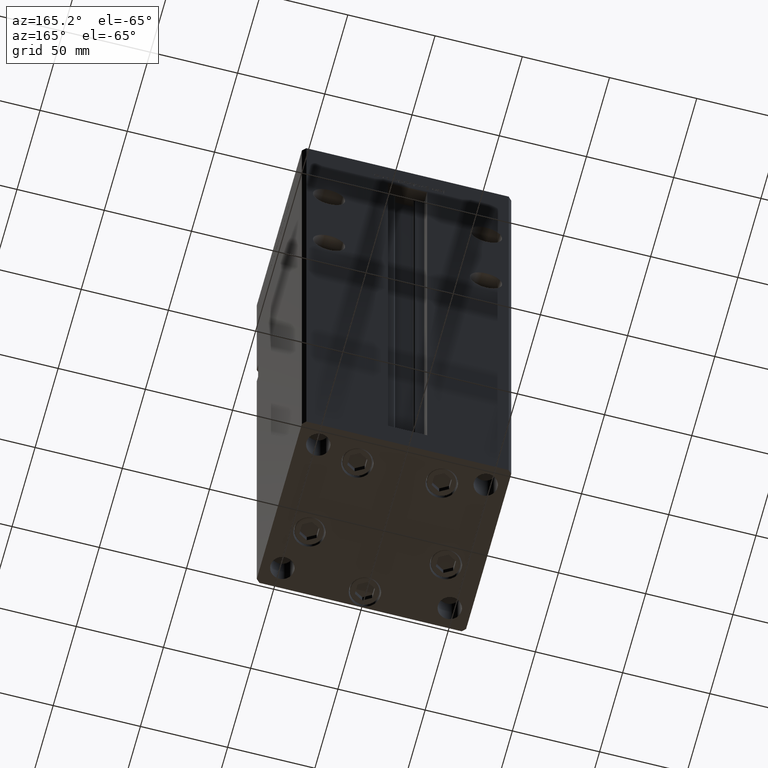
[diagram: clean part render]
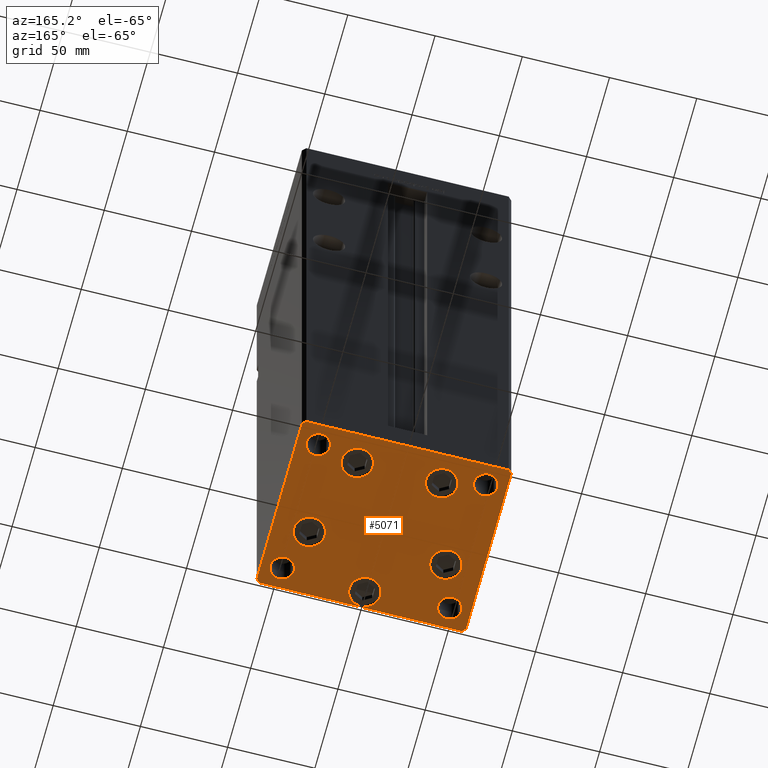
[diagram: same view with one face highlighted and labeled with its STEP entity id]
A machine part, auxiliary view. The second image highlights one B-rep face of the part: STEP entity #5071.
In plain terms, the highlighted planar face has unit normal (0, 0, -1).
Its self-contained STEP definition (entity closure, byte-faithful):
#227 = EDGE_CURVE ( 'NONE', #23688, #44124, #26103, .T. ) ;
#434 = VECTOR ( 'NONE', #35728, 1000.000000000000000 ) ;
#574 = VERTEX_POINT ( 'NONE', #50448 ) ;
#1425 = ORIENTED_EDGE ( 'NONE', *, *, #42362, .T. ) ;
#1432 = VERTEX_POINT ( 'NONE', #7036 ) ;
#1443 = EDGE_CURVE ( 'NONE', #43999, #1432, #26890, .T. ) ;
#1578 = AXIS2_PLACEMENT_3D ( 'NONE', #29244, #29500, #41588 ) ;
#1609 = DIRECTION ( 'NONE',  ( -0.000000000000000000, 0.000000000000000000, 1.000000000000000000 ) ) ;
#1767 = VERTEX_POINT ( 'NONE', #31162 ) ;
#2733 = DIRECTION ( 'NONE',  ( 1.000000000000000000, 0.000000000000000000, 0.000000000000000000 ) ) ;
#2850 = CARTESIAN_POINT ( 'NONE',  ( 60.00000000000001421, -48.99999999999999289, 0.000000000000000000 ) ) ;
#3507 = CARTESIAN_POINT ( 'NONE',  ( 57.99999999999993605, 51.00000000000000711, 0.000000000000000000 ) ) ;
#3524 = CIRCLE ( 'NONE', #19802, 6.749999999999999112 ) ;
#3670 = ORIENTED_EDGE ( 'NONE', *, *, #10462, .T. ) ;
#3736 = CARTESIAN_POINT ( 'NONE',  ( 48.00000000000000000, -38.99999999999999289, 0.000000000000000000 ) ) ;
#3819 = EDGE_LOOP ( 'NONE', ( #28936, #27051 ) ) ;
#3830 = ORIENTED_EDGE ( 'NONE', *, *, #23239, .T. ) ;
#4729 = DIRECTION ( 'NONE',  ( 1.000000000000000000, 1.196361017915039486E-16, 0.000000000000000000 ) ) ;
#4796 = VERTEX_POINT ( 'NONE', #33762 ) ;
#5071 = ADVANCED_FACE ( 'NONE', ( #38982, #30671, #26123, #26658, #42486, #26391, #45999, #30400, #22384, #17544 ), #50024, .T. ) ;
#5248 = CIRCLE ( 'NONE', #30094, 6.749999999999999112 ) ;
#5361 = CIRCLE ( 'NONE', #35337, 9.000000000000001776 ) ;
#5596 = ORIENTED_EDGE ( 'NONE', *, *, #10224, .T. ) ;
#6252 = DIRECTION ( 'NONE',  ( 1.000000000000000000, 0.000000000000000000, 0.000000000000000000 ) ) ;
#6625 = CARTESIAN_POINT ( 'NONE',  ( 39.12657522565562829, -13.83333333333332860, 0.000000000000000000 ) ) ;
#6651 = VERTEX_POINT ( 'NONE', #40194 ) ;
#6683 = AXIS2_PLACEMENT_3D ( 'NONE', #48412, #43857, #48680 ) ;
#6884 = DIRECTION ( 'NONE',  ( 1.000000000000000000, 0.000000000000000000, 0.000000000000000000 ) ) ;
#7036 = CARTESIAN_POINT ( 'NONE',  ( -57.99999999999999289, 50.99999999999997868, 0.000000000000000000 ) ) ;
#7197 = VERTEX_POINT ( 'NONE', #50492 ) ;
#7375 = ORIENTED_EDGE ( 'NONE', *, *, #26660, .T. ) ;
#7413 = DIRECTION ( 'NONE',  ( 0.000000000000000000, -0.000000000000000000, -1.000000000000000000 ) ) ;
#7436 = ORIENTED_EDGE ( 'NONE', *, *, #50884, .T. ) ;
#7828 = CARTESIAN_POINT ( 'NONE',  ( -54.75000000000000000, -39.00000000000000000, 0.000000000000000000 ) ) ;
#8031 = EDGE_CURVE ( 'NONE', #1432, #15408, #48982, .T. ) ;
#8234 = CARTESIAN_POINT ( 'NONE',  ( -39.12657522565562829, -13.83333333333333925, 0.000000000000000000 ) ) ;
#8241 = AXIS2_PLACEMENT_3D ( 'NONE', #9218, #50814, #38724 ) ;
#8758 = ORIENTED_EDGE ( 'NONE', *, *, #20417, .F. ) ;
#9142 = CARTESIAN_POINT ( 'NONE',  ( -24.19288941894912170, 33.71875000000000000, 0.000000000000000000 ) ) ;
#9218 = CARTESIAN_POINT ( 'NONE',  ( 0.000000000000000000, 0.000000000000000000, 0.000000000000000000 ) ) ;
#9290 = CARTESIAN_POINT ( 'NONE',  ( 59.99999999999994316, 49.00000000000000000, 0.000000000000000000 ) ) ;
#9383 = VECTOR ( 'NONE', #4729, 1000.000000000000000 ) ;
#9524 = EDGE_LOOP ( 'NONE', ( #34219, #34016 ) ) ;
#9579 = EDGE_CURVE ( 'NONE', #15054, #7197, #44361, .T. ) ;
#9876 = VECTOR ( 'NONE', #45505, 1000.000000000000114 ) ;
#9908 = ORIENTED_EDGE ( 'NONE', *, *, #13070, .T. ) ;
#10224 = EDGE_CURVE ( 'NONE', #6651, #4796, #52958, .T. ) ;
#10223 = AXIS2_PLACEMENT_3D ( 'NONE', #3736, #37247, #53118 ) ;
#10462 = EDGE_CURVE ( 'NONE', #48287, #37679, #32405, .T. ) ;
#12011 = DIRECTION ( 'NONE',  ( 1.000000000000000000, 0.000000000000000000, 0.000000000000000000 ) ) ;
#12204 = CARTESIAN_POINT ( 'NONE',  ( -57.99999999999999289, 50.99999999999997868, 0.000000000000000000 ) ) ;
#12214 = CARTESIAN_POINT ( 'NONE',  ( -48.00000000000000000, -39.00000000000000000, 0.000000000000000000 ) ) ;
#12481 = CARTESIAN_POINT ( 'NONE',  ( 58.00000000000000000, -51.00000000000000711, 0.000000000000000000 ) ) ;
#12526 = DIRECTION ( 'NONE',  ( 1.000000000000000000, 0.000000000000000000, 0.000000000000000000 ) ) ;
#12590 = CARTESIAN_POINT ( 'NONE',  ( 60.00000000000001421, -48.99999999999999289, 0.000000000000000000 ) ) ;
#12679 = AXIS2_PLACEMENT_3D ( 'NONE', #26786, #26257, #43688 ) ;
#12841 = VERTEX_POINT ( 'NONE', #21131 ) ;
#13070 = EDGE_CURVE ( 'NONE', #31435, #52591, #27263, .T. ) ;
#13367 = ORIENTED_EDGE ( 'NONE', *, *, #37819, .T. ) ;
#14818 = DIRECTION ( 'NONE',  ( 0.000000000000000000, -1.000000000000000000, 0.000000000000000000 ) ) ;
#14964 = VECTOR ( 'NONE', #51719, 1000.000000000000114 ) ;
#15054 = VERTEX_POINT ( 'NONE', #35616 ) ;
#15155 = EDGE_CURVE ( 'NONE', #50538, #25586, #23846, .T. ) ;
#15408 = VERTEX_POINT ( 'NONE', #35022 ) ;
#16948 = DIRECTION ( 'NONE',  ( 1.000000000000000000, 0.000000000000000000, 0.000000000000000000 ) ) ;
#16976 = AXIS2_PLACEMENT_3D ( 'NONE', #38552, #43643, #6884 ) ;
#17172 = CIRCLE ( 'NONE', #35996, 9.000000000000000000 ) ;
#17424 = CARTESIAN_POINT ( 'NONE',  ( -30.12657522565562829, -13.83333333333333748, 0.000000000000000000 ) ) ;
#17544 = FACE_BOUND ( 'NONE', #9524, .T. ) ;
#17641 = CARTESIAN_POINT ( 'NONE',  ( 59.99999999999994316, 49.00000000000000000, 0.000000000000000000 ) ) ;
#17900 = AXIS2_PLACEMENT_3D ( 'NONE', #6625, #7413, #23792 ) ;
#18593 = EDGE_LOOP ( 'NONE', ( #40769, #31527 ) ) ;
#19802 = AXIS2_PLACEMENT_3D ( 'NONE', #48216, #44436, #31301 ) ;
#20417 = EDGE_CURVE ( 'NONE', #44124, #23688, #3524, .T. ) ;
#20465 = CIRCLE ( 'NONE', #1578, 9.000000000000000000 ) ;
#20581 = CARTESIAN_POINT ( 'NONE',  ( -57.99999999999997868, -51.00000000000001421, 0.000000000000000000 ) ) ;
#20831 = EDGE_LOOP ( 'NONE', ( #21445, #3670 ) ) ;
#21131 = CARTESIAN_POINT ( 'NONE',  ( -8.999999999999994671, -41.50000000000000000, 0.000000000000000000 ) ) ;
#21445 = ORIENTED_EDGE ( 'NONE', *, *, #36437, .T. ) ;
#22384 = FACE_OUTER_BOUND ( 'NONE', #45068, .T. ) ;
#22632 = EDGE_LOOP ( 'NONE', ( #42536, #3830 ) ) ;
#23239 = EDGE_CURVE ( 'NONE', #31891, #44759, #43213, .T. ) ;
#23394 = DIRECTION ( 'NONE',  ( 0.000000000000000000, -0.000000000000000000, -1.000000000000000000 ) ) ;
#23441 = DIRECTION ( 'NONE',  ( 0.000000000000000000, -0.000000000000000000, -1.000000000000000000 ) ) ;
#23688 = VERTEX_POINT ( 'NONE', #50256 ) ;
#23792 = DIRECTION ( 'NONE',  ( 1.000000000000000000, 0.000000000000000000, 0.000000000000000000 ) ) ;
#23812 = VECTOR ( 'NONE', #36346, 1000.000000000000000 ) ;
#23846 = CIRCLE ( 'NONE', #12679, 9.000000000000001776 ) ;
#23870 = CARTESIAN_POINT ( 'NONE',  ( 39.12657522565562829, -13.83333333333332860, 0.000000000000000000 ) ) ;
#24037 = EDGE_CURVE ( 'NONE', #1767, #34746, #52252, .T. ) ;
#24847 = DIRECTION ( 'NONE',  ( -0.000000000000000000, 0.000000000000000000, 1.000000000000000000 ) ) ;
#25093 = AXIS2_PLACEMENT_3D ( 'NONE', #52288, #32396, #12011 ) ;
#25586 = VERTEX_POINT ( 'NONE', #40829 ) ;
#25917 = LINE ( 'NONE', #20581, #9383 ) ;
#26103 = CIRCLE ( 'NONE', #51817, 6.749999999999999112 ) ;
#26123 = FACE_BOUND ( 'NONE', #20831, .T. ) ;
#26257 = DIRECTION ( 'NONE',  ( 0.000000000000000000, -0.000000000000000000, -1.000000000000000000 ) ) ;
#26391 = FACE_BOUND ( 'NONE', #37590, .T. ) ;
#26476 = CARTESIAN_POINT ( 'NONE',  ( 9.000000000000005329, -41.50000000000000000, 0.000000000000000000 ) ) ;
#26658 = FACE_BOUND ( 'NONE', #3819, .T. ) ;
#26660 = EDGE_CURVE ( 'NONE', #49942, #31435, #49258, .T. ) ;
#26786 = CARTESIAN_POINT ( 'NONE',  ( -39.12657522565562829, -13.83333333333333925, 0.000000000000000000 ) ) ;
#26817 = DIRECTION ( 'NONE',  ( 1.000000000000000000, 0.000000000000000000, 0.000000000000000000 ) ) ;
#26890 = LINE ( 'NONE', #48098, #434 ) ;
#27051 = ORIENTED_EDGE ( 'NONE', *, *, #44447, .T. ) ;
#27263 = LINE ( 'NONE', #2850, #23812 ) ;
#28409 = DIRECTION ( 'NONE',  ( 1.000000000000000000, 0.000000000000000000, 0.000000000000000000 ) ) ;
#28549 = VERTEX_POINT ( 'NONE', #41482 ) ;
#28583 = DIRECTION ( 'NONE',  ( 1.000000000000000000, 0.000000000000000000, 0.000000000000000000 ) ) ;
#28936 = ORIENTED_EDGE ( 'NONE', *, *, #35169, .T. ) ;
#29061 = CARTESIAN_POINT ( 'NONE',  ( 30.12657522565562829, -13.83333333333332860, 0.000000000000000000 ) ) ;
#29161 = DIRECTION ( 'NONE',  ( 0.000000000000000000, -0.000000000000000000, -1.000000000000000000 ) ) ;
#29244 = CARTESIAN_POINT ( 'NONE',  ( -24.19288941894912170, 33.71875000000000000, 0.000000000000000000 ) ) ;
#29491 = AXIS2_PLACEMENT_3D ( 'NONE', #9142, #40106, #16948 ) ;
#29500 = DIRECTION ( 'NONE',  ( 0.000000000000000000, -0.000000000000000000, -1.000000000000000000 ) ) ;
#29867 = CARTESIAN_POINT ( 'NONE',  ( 58.00000000000000000, -51.00000000000000711, 0.000000000000000000 ) ) ;
#29943 = LINE ( 'NONE', #9290, #36833 ) ;
#29983 = DIRECTION ( 'NONE',  ( -0.000000000000000000, 0.000000000000000000, 1.000000000000000000 ) ) ;
#30094 = AXIS2_PLACEMENT_3D ( 'NONE', #49601, #29983, #33740 ) ;
#30376 = CARTESIAN_POINT ( 'NONE',  ( 48.12657522565562829, -13.83333333333332682, 0.000000000000000000 ) ) ;
#30400 = FACE_BOUND ( 'NONE', #35538, .T. ) ;
#30459 = ORIENTED_EDGE ( 'NONE', *, *, #227, .F. ) ;
#30671 = FACE_BOUND ( 'NONE', #49622, .T. ) ;
#31017 = AXIS2_PLACEMENT_3D ( 'NONE', #35225, #23441, #6252 ) ;
#31162 = CARTESIAN_POINT ( 'NONE',  ( -60.00000000000000000, -49.00000000000000000, 0.000000000000000000 ) ) ;
#31301 = DIRECTION ( 'NONE',  ( 1.000000000000000000, 0.000000000000000000, 0.000000000000000000 ) ) ;
#31435 = VERTEX_POINT ( 'NONE', #12590 ) ;
#31467 = CARTESIAN_POINT ( 'NONE',  ( 41.25000000000000000, -38.99999999999999289, 0.000000000000000000 ) ) ;
#31527 = ORIENTED_EDGE ( 'NONE', *, *, #52471, .T. ) ;
#31891 = VERTEX_POINT ( 'NONE', #32531 ) ;
#31962 = LINE ( 'NONE', #44305, #33323 ) ;
#32360 = ORIENTED_EDGE ( 'NONE', *, *, #43164, .T. ) ;
#32362 = AXIS2_PLACEMENT_3D ( 'NONE', #12214, #48209, #28583 ) ;
#32396 = DIRECTION ( 'NONE',  ( 0.000000000000000000, -0.000000000000000000, -1.000000000000000000 ) ) ;
#32405 = CIRCLE ( 'NONE', #45260, 9.000000000000001776 ) ;
#32531 = CARTESIAN_POINT ( 'NONE',  ( -15.19288941894912170, 33.71875000000000000, 0.000000000000000000 ) ) ;
#32614 = DIRECTION ( 'NONE',  ( 1.000000000000000000, 0.000000000000000000, 0.000000000000000000 ) ) ;
#32641 = ORIENTED_EDGE ( 'NONE', *, *, #51597, .T. ) ;
#33323 = VECTOR ( 'NONE', #14818, 1000.000000000000000 ) ;
#33369 = CIRCLE ( 'NONE', #10223, 6.749999999999999112 ) ;
#33390 = EDGE_CURVE ( 'NONE', #49188, #28549, #40946, .T. ) ;
#33740 = DIRECTION ( 'NONE',  ( 1.000000000000000000, 0.000000000000000000, 0.000000000000000000 ) ) ;
#33762 = CARTESIAN_POINT ( 'NONE',  ( 15.19288941894911105, 33.71875000000000711, 0.000000000000000000 ) ) ;
#33974 = DIRECTION ( 'NONE',  ( 1.000000000000000000, 0.000000000000000000, 0.000000000000000000 ) ) ;
#34016 = ORIENTED_EDGE ( 'NONE', *, *, #33390, .T. ) ;
#34219 = ORIENTED_EDGE ( 'NONE', *, *, #50147, .T. ) ;
#34274 = EDGE_LOOP ( 'NONE', ( #7436, #35288 ) ) ;
#34496 = DIRECTION ( 'NONE',  ( 0.000000000000000000, -0.000000000000000000, -1.000000000000000000 ) ) ;
#34531 = AXIS2_PLACEMENT_3D ( 'NONE', #44291, #23394, #2733 ) ;
#34746 = VERTEX_POINT ( 'NONE', #45676 ) ;
#35022 = CARTESIAN_POINT ( 'NONE',  ( -60.00000000000000000, 48.99999999999995737, 0.000000000000000000 ) ) ;
#35169 = EDGE_CURVE ( 'NONE', #12841, #51790, #47867, .T. ) ;
#35225 = CARTESIAN_POINT ( 'NONE',  ( -48.00000000000000000, -39.00000000000000000, 0.000000000000000000 ) ) ;
#35288 = ORIENTED_EDGE ( 'NONE', *, *, #15155, .T. ) ;
#35337 = AXIS2_PLACEMENT_3D ( 'NONE', #8234, #29161, #12526 ) ;
#35538 = EDGE_LOOP ( 'NONE', ( #30459, #8758 ) ) ;
#35616 = CARTESIAN_POINT ( 'NONE',  ( 41.25000000000000000, 38.99999999999999289, 0.000000000000000000 ) ) ;
#35728 = DIRECTION ( 'NONE',  ( -1.000000000000000000, -2.392722035830079958E-16, 0.000000000000000000 ) ) ;
#35903 = EDGE_CURVE ( 'NONE', #44759, #31891, #20465, .T. ) ;
#35996 = AXIS2_PLACEMENT_3D ( 'NONE', #38007, #34496, #33974 ) ;
#36346 = DIRECTION ( 'NONE',  ( -7.080503983578803823E-16, 1.000000000000000000, 0.000000000000000000 ) ) ;
#36437 = EDGE_CURVE ( 'NONE', #37679, #48287, #41027, .T. ) ;
#36833 = VECTOR ( 'NONE', #40770, 1000.000000000000000 ) ;
#37247 = DIRECTION ( 'NONE',  ( 0.000000000000000000, -0.000000000000000000, -1.000000000000000000 ) ) ;
#37590 = EDGE_LOOP ( 'NONE', ( #44771, #42819 ) ) ;
#37679 = VERTEX_POINT ( 'NONE', #29061 ) ;
#37819 = EDGE_CURVE ( 'NONE', #15408, #1767, #31962, .T. ) ;
#37874 = CIRCLE ( 'NONE', #31017, 6.749999999999999112 ) ;
#38007 = CARTESIAN_POINT ( 'NONE',  ( 5.082284216461515748E-15, -41.50000000000000000, 0.000000000000000000 ) ) ;
#38552 = CARTESIAN_POINT ( 'NONE',  ( 5.082284216461515748E-15, -41.50000000000000000, 0.000000000000000000 ) ) ;
#38723 = ORIENTED_EDGE ( 'NONE', *, *, #24037, .T. ) ;
#38724 = DIRECTION ( 'NONE',  ( 1.000000000000000000, 0.000000000000000000, 0.000000000000000000 ) ) ;
#38982 = FACE_BOUND ( 'NONE', #22632, .T. ) ;
#39056 = EDGE_CURVE ( 'NONE', #574, #42864, #33369, .T. ) ;
#39371 = CARTESIAN_POINT ( 'NONE',  ( -60.00000000000000000, -49.00000000000000000, 0.000000000000000000 ) ) ;
#40106 = DIRECTION ( 'NONE',  ( 0.000000000000000000, -0.000000000000000000, -1.000000000000000000 ) ) ;
#40194 = CARTESIAN_POINT ( 'NONE',  ( 33.19288941894911460, 33.71875000000000711, 0.000000000000000000 ) ) ;
#40769 = ORIENTED_EDGE ( 'NONE', *, *, #39056, .T. ) ;
#40770 = DIRECTION ( 'NONE',  ( -0.7071067811865487940, 0.7071067811865463515, 0.000000000000000000 ) ) ;
#40829 = CARTESIAN_POINT ( 'NONE',  ( -48.12657522565562829, -13.83333333333333925, 0.000000000000000000 ) ) ;
#40946 = CIRCLE ( 'NONE', #32362, 6.749999999999999112 ) ;
#41027 = CIRCLE ( 'NONE', #17900, 9.000000000000001776 ) ;
#41482 = CARTESIAN_POINT ( 'NONE',  ( -41.25000000000000000, -39.00000000000000000, 0.000000000000000000 ) ) ;
#41588 = DIRECTION ( 'NONE',  ( 1.000000000000000000, 0.000000000000000000, 0.000000000000000000 ) ) ;
#42362 = EDGE_CURVE ( 'NONE', #34746, #49942, #25917, .T. ) ;
#42486 = FACE_BOUND ( 'NONE', #34274, .T. ) ;
#42536 = ORIENTED_EDGE ( 'NONE', *, *, #35903, .T. ) ;
#42819 = ORIENTED_EDGE ( 'NONE', *, *, #9579, .F. ) ;
#42864 = VERTEX_POINT ( 'NONE', #31467 ) ;
#42922 = CARTESIAN_POINT ( 'NONE',  ( 48.00000000000000000, 38.99999999999999289, 0.000000000000000000 ) ) ;
#43164 = EDGE_CURVE ( 'NONE', #52591, #43999, #29943, .T. ) ;
#43213 = CIRCLE ( 'NONE', #29491, 9.000000000000000000 ) ;
#43643 = DIRECTION ( 'NONE',  ( 0.000000000000000000, -0.000000000000000000, -1.000000000000000000 ) ) ;
#43688 = DIRECTION ( 'NONE',  ( 1.000000000000000000, 0.000000000000000000, 0.000000000000000000 ) ) ;
#43857 = DIRECTION ( 'NONE',  ( 0.000000000000000000, -0.000000000000000000, -1.000000000000000000 ) ) ;
#43999 = VERTEX_POINT ( 'NONE', #3507 ) ;
#44124 = VERTEX_POINT ( 'NONE', #46660 ) ;
#44291 = CARTESIAN_POINT ( 'NONE',  ( 48.00000000000000000, -38.99999999999999289, 0.000000000000000000 ) ) ;
#44305 = CARTESIAN_POINT ( 'NONE',  ( -60.00000000000000000, 48.99999999999995737, 0.000000000000000000 ) ) ;
#44361 = CIRCLE ( 'NONE', #47797, 6.749999999999999112 ) ;
#44436 = DIRECTION ( 'NONE',  ( -0.000000000000000000, 0.000000000000000000, 1.000000000000000000 ) ) ;
#44447 = EDGE_CURVE ( 'NONE', #51790, #12841, #17172, .T. ) ;
#44759 = VERTEX_POINT ( 'NONE', #50246 ) ;
#44771 = ORIENTED_EDGE ( 'NONE', *, *, #47549, .F. ) ;
#44947 = DIRECTION ( 'NONE',  ( -0.7071067811865451302, -0.7071067811865500152, 0.000000000000000000 ) ) ;
#45068 = EDGE_LOOP ( 'NONE', ( #38723, #1425, #7375, #9908, #32360, #50272, #50598, #13367 ) ) ;
#45260 = AXIS2_PLACEMENT_3D ( 'NONE', #23870, #52319, #28409 ) ;
#45505 = DIRECTION ( 'NONE',  ( 0.7071067811865474617, 0.7071067811865474617, 0.000000000000000000 ) ) ;
#45676 = CARTESIAN_POINT ( 'NONE',  ( -57.99999999999997868, -51.00000000000001421, 0.000000000000000000 ) ) ;
#45999 = FACE_BOUND ( 'NONE', #18593, .T. ) ;
#46660 = CARTESIAN_POINT ( 'NONE',  ( -54.75000000000000000, 39.00000000000000000, 0.000000000000000000 ) ) ;
#47549 = EDGE_CURVE ( 'NONE', #7197, #15054, #5248, .T. ) ;
#47755 = VECTOR ( 'NONE', #44947, 1000.000000000000114 ) ;
#47797 = AXIS2_PLACEMENT_3D ( 'NONE', #42922, #1609, #26817 ) ;
#47867 = CIRCLE ( 'NONE', #16976, 9.000000000000000000 ) ;
#48098 = CARTESIAN_POINT ( 'NONE',  ( 57.99999999999993605, 51.00000000000000711, 0.000000000000000000 ) ) ;
#48209 = DIRECTION ( 'NONE',  ( 0.000000000000000000, -0.000000000000000000, -1.000000000000000000 ) ) ;
#48216 = CARTESIAN_POINT ( 'NONE',  ( -48.00000000000000000, 39.00000000000000000, 0.000000000000000000 ) ) ;
#48287 = VERTEX_POINT ( 'NONE', #30376 ) ;
#48412 = CARTESIAN_POINT ( 'NONE',  ( 24.19288941894911460, 33.71875000000000711, 0.000000000000000000 ) ) ;
#48680 = DIRECTION ( 'NONE',  ( 1.000000000000000000, 0.000000000000000000, 0.000000000000000000 ) ) ;
#48982 = LINE ( 'NONE', #12204, #47755 ) ;
#49107 = CIRCLE ( 'NONE', #34531, 6.749999999999999112 ) ;
#49188 = VERTEX_POINT ( 'NONE', #7828 ) ;
#49258 = LINE ( 'NONE', #12481, #9876 ) ;
#49601 = CARTESIAN_POINT ( 'NONE',  ( 48.00000000000000000, 38.99999999999999289, 0.000000000000000000 ) ) ;
#49622 = EDGE_LOOP ( 'NONE', ( #32641, #5596 ) ) ;
#49942 = VERTEX_POINT ( 'NONE', #29867 ) ;
#50024 = PLANE ( 'NONE',  #8241 ) ;
#50147 = EDGE_CURVE ( 'NONE', #28549, #49188, #37874, .T. ) ;
#50246 = CARTESIAN_POINT ( 'NONE',  ( -33.19288941894912170, 33.71875000000000000, 0.000000000000000000 ) ) ;
#50256 = CARTESIAN_POINT ( 'NONE',  ( -41.25000000000000000, 39.00000000000000000, 0.000000000000000000 ) ) ;
#50272 = ORIENTED_EDGE ( 'NONE', *, *, #1443, .T. ) ;
#50448 = CARTESIAN_POINT ( 'NONE',  ( 54.75000000000000000, -38.99999999999999289, 0.000000000000000000 ) ) ;
#50492 = CARTESIAN_POINT ( 'NONE',  ( 54.75000000000000000, 38.99999999999999289, 0.000000000000000000 ) ) ;
#50538 = VERTEX_POINT ( 'NONE', #17424 ) ;
#50598 = ORIENTED_EDGE ( 'NONE', *, *, #8031, .T. ) ;
#50793 = CIRCLE ( 'NONE', #25093, 9.000000000000001776 ) ;
#50814 = DIRECTION ( 'NONE',  ( -0.000000000000000000, 0.000000000000000000, 1.000000000000000000 ) ) ;
#50884 = EDGE_CURVE ( 'NONE', #25586, #50538, #5361, .T. ) ;
#51597 = EDGE_CURVE ( 'NONE', #4796, #6651, #50793, .T. ) ;
#51719 = DIRECTION ( 'NONE',  ( 0.7071067811865474617, -0.7071067811865474617, 0.000000000000000000 ) ) ;
#51790 = VERTEX_POINT ( 'NONE', #26476 ) ;
#51817 = AXIS2_PLACEMENT_3D ( 'NONE', #52758, #24847, #32614 ) ;
#52252 = LINE ( 'NONE', #39371, #14964 ) ;
#52288 = CARTESIAN_POINT ( 'NONE',  ( 24.19288941894911460, 33.71875000000000711, 0.000000000000000000 ) ) ;
#52319 = DIRECTION ( 'NONE',  ( 0.000000000000000000, -0.000000000000000000, -1.000000000000000000 ) ) ;
#52471 = EDGE_CURVE ( 'NONE', #42864, #574, #49107, .T. ) ;
#52591 = VERTEX_POINT ( 'NONE', #17641 ) ;
#52758 = CARTESIAN_POINT ( 'NONE',  ( -48.00000000000000000, 39.00000000000000000, 0.000000000000000000 ) ) ;
#52958 = CIRCLE ( 'NONE', #6683, 9.000000000000001776 ) ;
#53118 = DIRECTION ( 'NONE',  ( 1.000000000000000000, 0.000000000000000000, 0.000000000000000000 ) ) ;